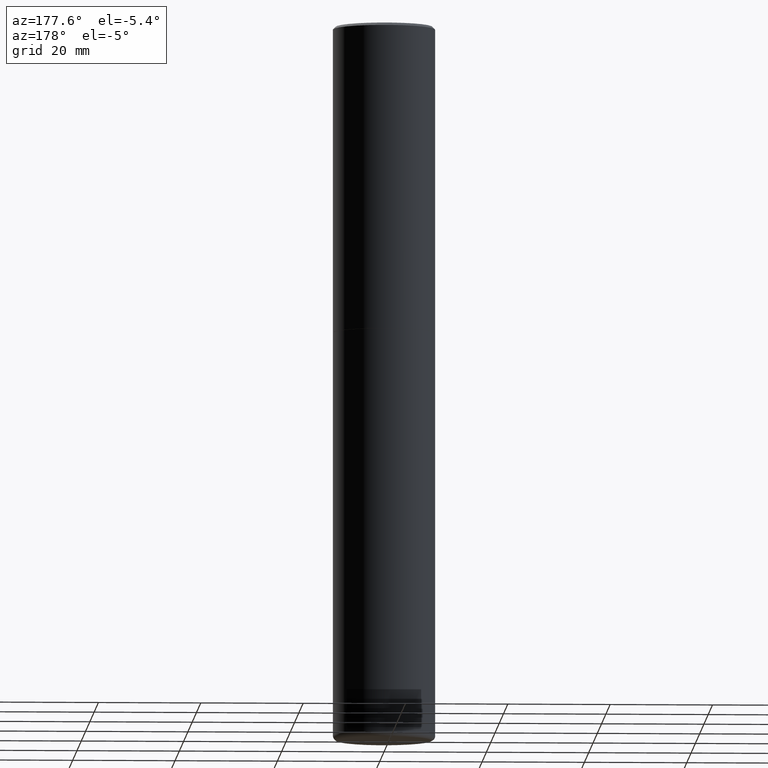
[diagram: clean part render]
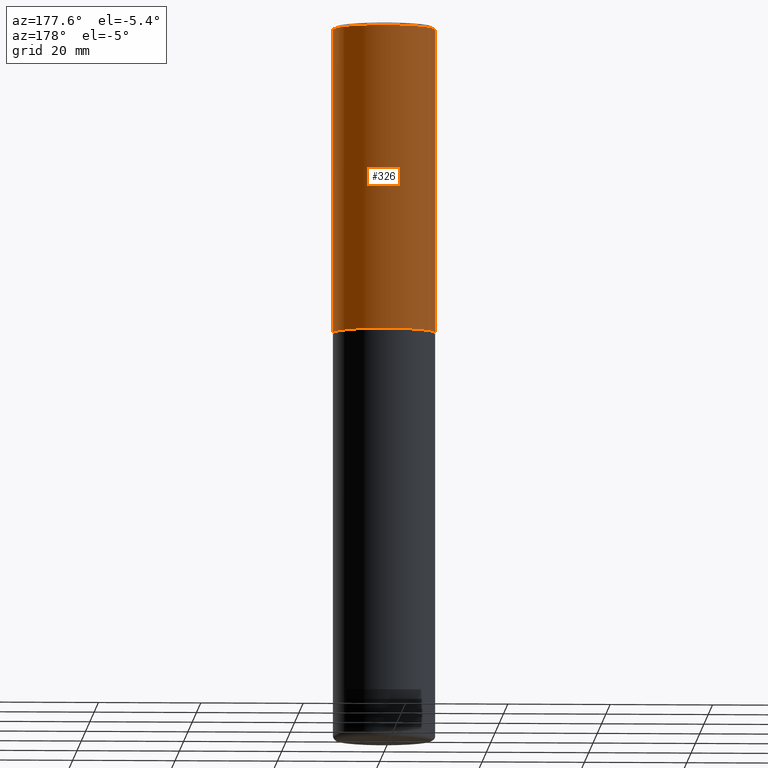
[diagram: same view with one face highlighted and labeled with its STEP entity id]
A machine part, auxiliary view. The second image highlights one B-rep face of the part: STEP entity #326.
In plain terms, the highlighted cylindrical surface (partial cylindrical patch) has radius 10 mm, axis along (-0, 0, 1).
Its self-contained STEP definition (entity closure, byte-faithful):
#9 = CARTESIAN_POINT ( 'NONE',  ( 0.000000000000000000, 0.000000000000000000, 0.000000000000000000 ) ) ;
#10 = VERTEX_POINT ( 'NONE', #105 ) ;
#16 = CIRCLE ( 'NONE', #87, 0.3937000000000001054 ) ;
#34 = CARTESIAN_POINT ( 'NONE',  ( 4.890937612370294178E-31, -6.982962677686321191E-17, -0.02000000000000008715 ) ) ;
#60 = LINE ( 'NONE', #303, #349 ) ;
#61 = VERTEX_POINT ( 'NONE', #399 ) ;
#66 = AXIS2_PLACEMENT_3D ( 'NONE', #162, #99, #288 ) ;
#72 = ORIENTED_EDGE ( 'NONE', *, *, #109, .F. ) ;
#87 = AXIS2_PLACEMENT_3D ( 'NONE', #34, #340, #130 ) ;
#94 = VECTOR ( 'NONE', #265, 39.37007874015748143 ) ;
#98 = VERTEX_POINT ( 'NONE', #357 ) ;
#99 = DIRECTION ( 'NONE',  ( -2.445468806185136597E-29, 3.491481338843145583E-15, 1.000000000000000000 ) ) ;
#101 = DIRECTION ( 'NONE',  ( -2.445468806185136597E-29, 3.491481338843145583E-15, 1.000000000000000000 ) ) ;
#105 = CARTESIAN_POINT ( 'NONE',  ( 0.3937000000000001054, -2.770807688499516128E-15, -0.02000000000000008715 ) ) ;
#106 = DIRECTION ( 'NONE',  ( -2.445468806185136877E-29, 3.491481338843145188E-15, 1.000000000000000000 ) ) ;
#109 = EDGE_CURVE ( 'NONE', #98, #10, #325, .T. ) ;
#117 = CIRCLE ( 'NONE', #66, 0.3937000000000002720 ) ;
#125 = ORIENTED_EDGE ( 'NONE', *, *, #234, .T. ) ;
#127 = CARTESIAN_POINT ( 'NONE',  ( -0.3937000000000001054, 2.679362779428220707E-15, -0.02000000000000008715 ) ) ;
#130 = DIRECTION ( 'NONE',  ( 1.000000000000000000, -6.982962677686266711E-15, 0.000000000000000000 ) ) ;
#134 = FACE_OUTER_BOUND ( 'NONE', #154, .T. ) ;
#154 = EDGE_LOOP ( 'NONE', ( #125, #334, #248, #72 ) ) ;
#162 = CARTESIAN_POINT ( 'NONE',  ( 5.774240945164344150E-29, -8.244085737276435042E-15, -2.361199999999999743 ) ) ;
#175 = AXIS2_PLACEMENT_3D ( 'NONE', #9, #101, #272 ) ;
#199 = CARTESIAN_POINT ( 'NONE',  ( 0.3937000000000002164, -2.749192406205084794E-15, 1.919750796630861012E-29 ) ) ;
#220 = EDGE_CURVE ( 'NONE', #10, #382, #16, .T. ) ;
#234 = EDGE_CURVE ( 'NONE', #98, #61, #117, .T. ) ;
#248 = ORIENTED_EDGE ( 'NONE', *, *, #220, .F. ) ;
#265 = DIRECTION ( 'NONE',  ( -2.445468806185136877E-29, 3.491481338843145188E-15, 1.000000000000000000 ) ) ;
#272 = DIRECTION ( 'NONE',  ( 1.000000000000000000, -6.982962677686266711E-15, 4.876176775795935793E-29 ) ) ;
#288 = DIRECTION ( 'NONE',  ( 1.000000000000000000, -6.982962677686265922E-15, 0.000000000000000000 ) ) ;
#303 = CARTESIAN_POINT ( 'NONE',  ( -0.3937000000000002164, 2.797406750687515970E-15, -1.936584745033357576E-29 ) ) ;
#305 = CYLINDRICAL_SURFACE ( 'NONE', #175, 0.3937000000000002164 ) ;
#324 = EDGE_CURVE ( 'NONE', #61, #382, #60, .T. ) ;
#325 = LINE ( 'NONE', #199, #94 ) ;
#326 = ADVANCED_FACE ( 'NONE', ( #134 ), #305, .T. ) ;
#334 = ORIENTED_EDGE ( 'NONE', *, *, #324, .T. ) ;
#340 = DIRECTION ( 'NONE',  ( -2.445468806185136597E-29, 3.491481338843145583E-15, 1.000000000000000000 ) ) ;
#349 = VECTOR ( 'NONE', #106, 39.37007874015748143 ) ;
#357 = CARTESIAN_POINT ( 'NONE',  ( 0.3937000000000002720, -1.099327814348151984E-14, -2.361199999999999743 ) ) ;
#382 = VERTEX_POINT ( 'NONE', #127 ) ;
#399 = CARTESIAN_POINT ( 'NONE',  ( -0.3937000000000002720, -1.359550931339130834E-15, -2.361199999999999743 ) ) ;